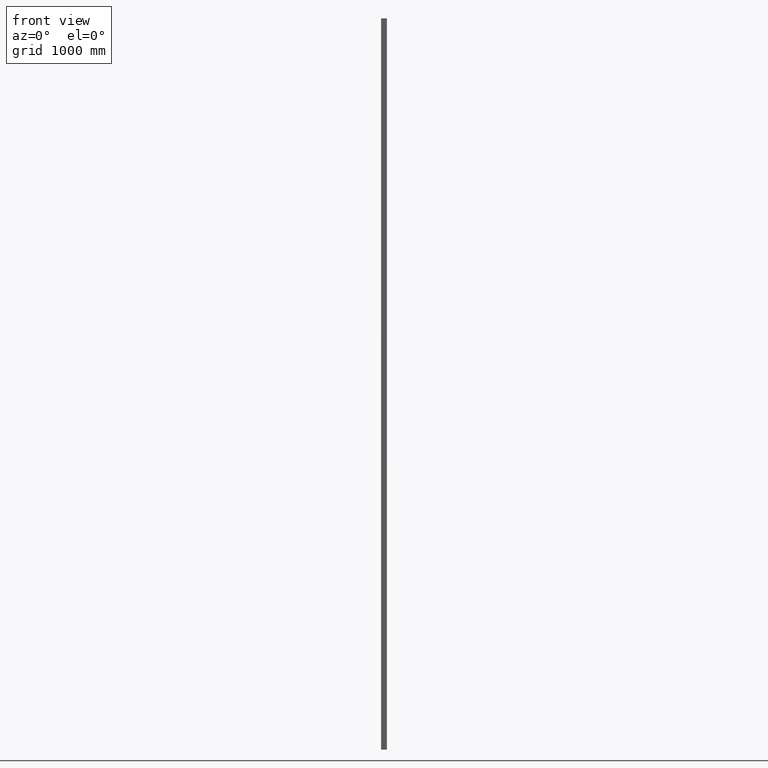
[diagram: clean part render]
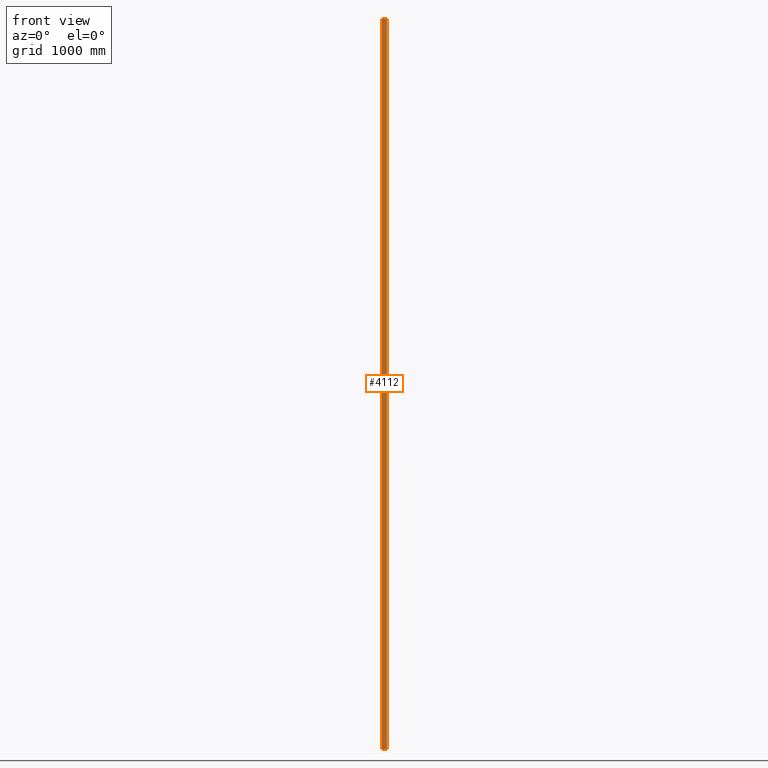
[diagram: same view with one face highlighted and labeled with its STEP entity id]
A machine part, front view. The second image highlights one B-rep face of the part: STEP entity #4112.
In plain terms, the highlighted planar face has unit normal (-0, 1, 0).
Its self-contained STEP definition (entity closure, byte-faithful):
#49 = CARTESIAN_POINT ( 'NONE',  ( 4.885781668966657800, 0.0000000000000000000, 3000.000000000000000 ) ) ;
#1443 = PLANE ( 'NONE',  #9755 ) ;
#1487 = DIRECTION ( 'NONE',  ( -1.000000000000000000, -2.671800970530447900E-016, 0.0000000000000000000 ) ) ;
#1956 = DIRECTION ( 'NONE',  ( 1.000000000000000000, 2.671800970530447900E-016, 0.0000000000000000000 ) ) ;
#2262 = LINE ( 'NONE', #4637, #6126 ) ;
#2488 = CARTESIAN_POINT ( 'NONE',  ( 4.885781668966657800, 0.0000000000000000000, 3000.000000000000000 ) ) ;
#2525 = EDGE_CURVE ( 'NONE', #9682, #6138, #11333, .T. ) ;
#3229 = VERTEX_POINT ( 'NONE', #12084 ) ;
#3622 = EDGE_CURVE ( 'NONE', #3229, #9682, #11580, .T. ) ;
#3877 = EDGE_CURVE ( 'NONE', #3229, #11017, #10242, .T. ) ;
#4112 = ADVANCED_FACE ( 'NONE', ( #9920 ), #1443, .F. ) ;
#4456 = CARTESIAN_POINT ( 'NONE',  ( 4.885781668966657800, 0.0000000000000000000, -3000.000000000000000 ) ) ;
#4637 = CARTESIAN_POINT ( 'NONE',  ( 47.89999999999999900, 1.149254302834634500E-014, 3000.000000000000000 ) ) ;
#5012 = EDGE_LOOP ( 'NONE', ( #12113, #9359, #12977, #10484 ) ) ;
#5447 = VECTOR ( 'NONE', #1956, 1000.000000000000000 ) ;
#6126 = VECTOR ( 'NONE', #6894, 1000.000000000000000 ) ;
#6138 = VERTEX_POINT ( 'NONE', #12743 ) ;
#6156 = VECTOR ( 'NONE', #8420, 1000.000000000000000 ) ;
#6894 = DIRECTION ( 'NONE',  ( -0.0000000000000000000, -0.0000000000000000000, -1.000000000000000000 ) ) ;
#6916 = CARTESIAN_POINT ( 'NONE',  ( 47.89999999999999900, 1.149254302834634500E-014, 3000.000000000000000 ) ) ;
#8141 = CARTESIAN_POINT ( 'NONE',  ( 4.885781668966657800, 0.0000000000000000000, -3000.000000000000000 ) ) ;
#8296 = CARTESIAN_POINT ( 'NONE',  ( 4.885781668966657800, 0.0000000000000000000, 3000.000000000000000 ) ) ;
#8420 = DIRECTION ( 'NONE',  ( 1.000000000000000000, 2.671800970530447900E-016, 0.0000000000000000000 ) ) ;
#8623 = VECTOR ( 'NONE', #10439, 1000.000000000000000 ) ;
#8846 = DIRECTION ( 'NONE',  ( -2.671800970530447900E-016, 1.000000000000000000, 0.0000000000000000000 ) ) ;
#8956 = EDGE_CURVE ( 'NONE', #11017, #6138, #2262, .T. ) ;
#9359 = ORIENTED_EDGE ( 'NONE', *, *, #8956, .F. ) ;
#9682 = VERTEX_POINT ( 'NONE', #4456 ) ;
#9755 = AXIS2_PLACEMENT_3D ( 'NONE', #2488, #8846, #1487 ) ;
#9920 = FACE_OUTER_BOUND ( 'NONE', #5012, .T. ) ;
#10242 = LINE ( 'NONE', #49, #6156 ) ;
#10439 = DIRECTION ( 'NONE',  ( -0.0000000000000000000, -0.0000000000000000000, -1.000000000000000000 ) ) ;
#10484 = ORIENTED_EDGE ( 'NONE', *, *, #3622, .T. ) ;
#11017 = VERTEX_POINT ( 'NONE', #6916 ) ;
#11333 = LINE ( 'NONE', #8141, #5447 ) ;
#11580 = LINE ( 'NONE', #8296, #8623 ) ;
#12084 = CARTESIAN_POINT ( 'NONE',  ( 4.885781668966657800, 0.0000000000000000000, 3000.000000000000000 ) ) ;
#12113 = ORIENTED_EDGE ( 'NONE', *, *, #2525, .T. ) ;
#12743 = CARTESIAN_POINT ( 'NONE',  ( 47.89999999999999900, 1.149254302834634500E-014, -3000.000000000000000 ) ) ;
#12977 = ORIENTED_EDGE ( 'NONE', *, *, #3877, .F. ) ;